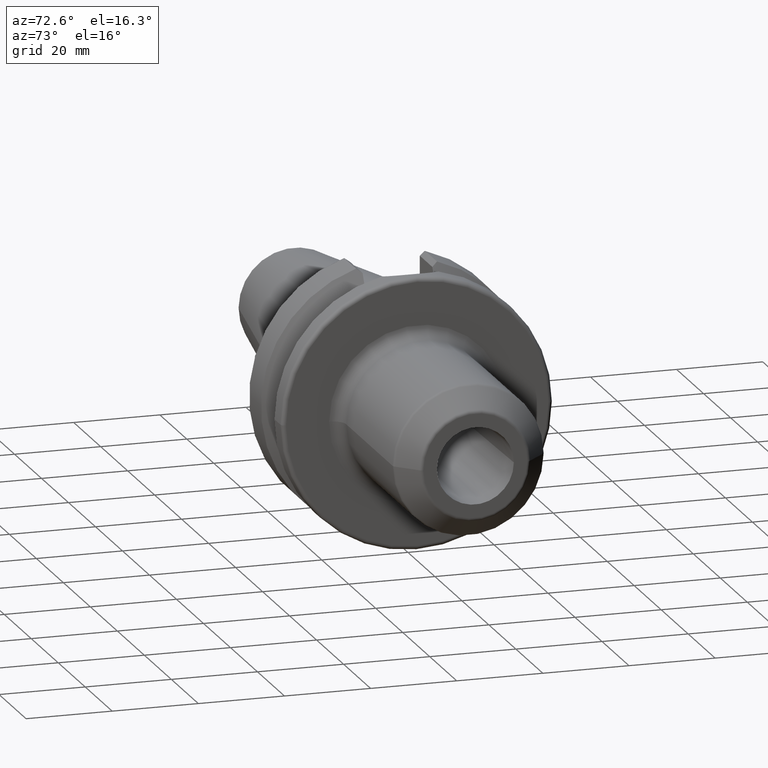
[diagram: clean part render]
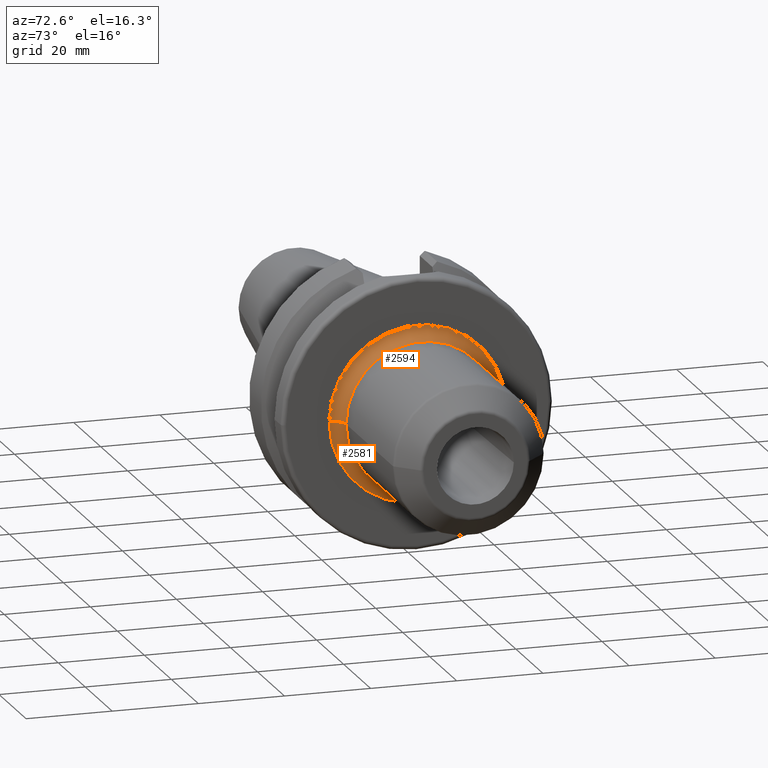
[diagram: same view with one multi-face feature highlighted, each face labeled with its STEP entity id]
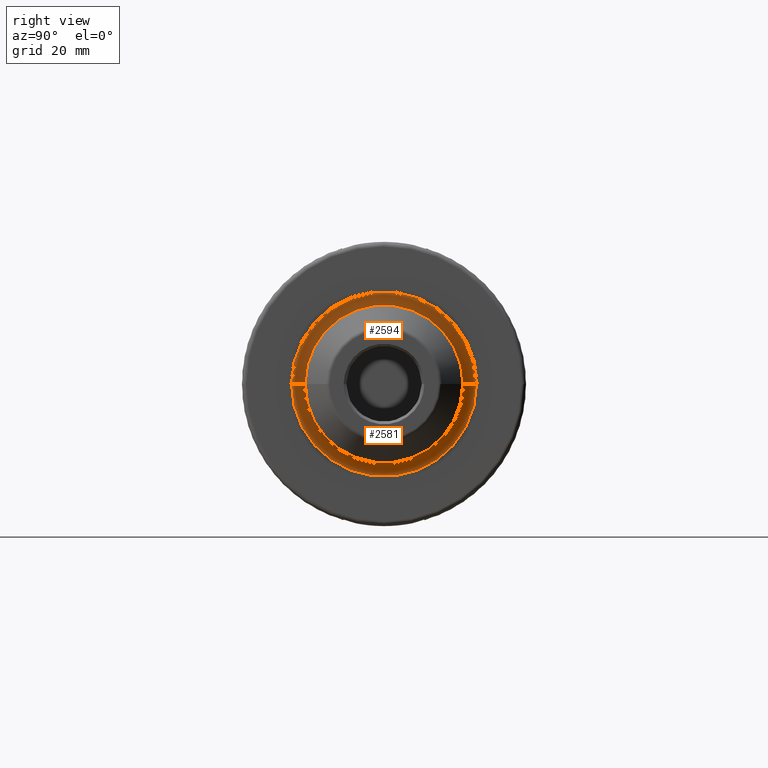
[diagram: same view with one multi-face feature highlighted, each face labeled with its STEP entity id]
A machine part, auxiliary view. The highlighted faces form ONE feature: a constant-radius fillet chain: 2 tangent blend faces with common blend radius 3 mm. The faces share edges in the B-rep.
A second angle (right view) of the same feature is appended — it is thin or edge-on in the first view.
Their STEP definitions:
[1] entity #2581 (Torus):
#836=CARTESIAN_POINT('',(2.7E1,0.E0,0.E0));
#837=DIRECTION('',(1.E0,0.E0,0.E0));
#838=DIRECTION('',(0.E0,-1.E0,0.E0));
#839=AXIS2_PLACEMENT_3D('',#836,#837,#838);
#846=CARTESIAN_POINT('',(3.E1,-2.05E1,7.607525720488E-13));
#847=DIRECTION('',(0.E0,-3.710920459810E-14,-1.E0));
#848=DIRECTION('',(-1.E0,4.855375361027E-14,0.E0));
#849=AXIS2_PLACEMENT_3D('',#846,#847,#848);
#851=CARTESIAN_POINT('',(3.E1,2.05E1,-7.637779297909E-13));
#852=DIRECTION('',(0.E0,3.725665609355E-14,1.E0));
#853=DIRECTION('',(-1.E0,-4.973799150321E-14,0.E0));
#854=AXIS2_PLACEMENT_3D('',#851,#852,#853);
#885=CARTESIAN_POINT('',(3.E1,0.E0,0.E0));
#886=DIRECTION('',(1.E0,0.E0,0.E0));
#887=DIRECTION('',(0.E0,-1.E0,0.E0));
#888=AXIS2_PLACEMENT_3D('',#885,#886,#887);
#1443=CARTESIAN_POINT('',(2.7E1,-2.05E1,0.E0));
#1444=CARTESIAN_POINT('',(2.7E1,2.05E1,0.E0));
#1445=VERTEX_POINT('',#1443);
#1446=VERTEX_POINT('',#1444);
#1447=CARTESIAN_POINT('',(3.E1,-1.75E1,0.E0));
#1448=CARTESIAN_POINT('',(3.E1,1.75E1,0.E0));
#1449=VERTEX_POINT('',#1447);
#1450=VERTEX_POINT('',#1448);
#2567=CARTESIAN_POINT('',(3.E1,0.E0,0.E0));
#2568=DIRECTION('',(1.E0,0.E0,0.E0));
#2569=DIRECTION('',(0.E0,-9.999613968234E-1,8.786629791456E-3));
#2570=AXIS2_PLACEMENT_3D('',#2567,#2568,#2569);
#2571=TOROIDAL_SURFACE('',#2570,2.05E1,3.E0);
#2572=ORIENTED_EDGE('',*,*,#2560,.F.);
#2574=ORIENTED_EDGE('',*,*,#2573,.T.);
#2576=ORIENTED_EDGE('',*,*,#2575,.T.);
#2578=ORIENTED_EDGE('',*,*,#2577,.F.);
#2579=EDGE_LOOP('',(#2572,#2574,#2576,#2578));
#2580=FACE_OUTER_BOUND('',#2579,.F.);
#2581=ADVANCED_FACE('',(#2580),#2571,.F.);
#840=CIRCLE('',#839,2.05E1);
#850=CIRCLE('',#849,3.E0);
#855=CIRCLE('',#854,3.E0);
#889=CIRCLE('',#888,1.75E1);
#2560=EDGE_CURVE('',#1445,#1446,#840,.T.);
#2573=EDGE_CURVE('',#1445,#1449,#850,.T.);
#2575=EDGE_CURVE('',#1449,#1450,#889,.T.);
#2577=EDGE_CURVE('',#1446,#1450,#855,.T.);
[2] entity #2594 (Torus):
#841=CARTESIAN_POINT('',(2.7E1,0.E0,0.E0));
#842=DIRECTION('',(1.E0,0.E0,0.E0));
#843=DIRECTION('',(0.E0,1.E0,0.E0));
#844=AXIS2_PLACEMENT_3D('',#841,#842,#843);
#846=CARTESIAN_POINT('',(3.E1,-2.05E1,7.607525720488E-13));
#847=DIRECTION('',(0.E0,-3.710920459810E-14,-1.E0));
#848=DIRECTION('',(-1.E0,4.855375361027E-14,0.E0));
#849=AXIS2_PLACEMENT_3D('',#846,#847,#848);
#851=CARTESIAN_POINT('',(3.E1,2.05E1,-7.637779297909E-13));
#852=DIRECTION('',(0.E0,3.725665609355E-14,1.E0));
#853=DIRECTION('',(-1.E0,-4.973799150321E-14,0.E0));
#854=AXIS2_PLACEMENT_3D('',#851,#852,#853);
#861=CARTESIAN_POINT('',(3.E1,0.E0,0.E0));
#862=DIRECTION('',(1.E0,0.E0,0.E0));
#863=DIRECTION('',(0.E0,1.E0,0.E0));
#864=AXIS2_PLACEMENT_3D('',#861,#862,#863);
#1443=CARTESIAN_POINT('',(2.7E1,-2.05E1,0.E0));
#1444=CARTESIAN_POINT('',(2.7E1,2.05E1,0.E0));
#1445=VERTEX_POINT('',#1443);
#1446=VERTEX_POINT('',#1444);
#1447=CARTESIAN_POINT('',(3.E1,-1.75E1,0.E0));
#1448=CARTESIAN_POINT('',(3.E1,1.75E1,0.E0));
#1449=VERTEX_POINT('',#1447);
#1450=VERTEX_POINT('',#1448);
#2582=CARTESIAN_POINT('',(3.E1,0.E0,0.E0));
#2583=DIRECTION('',(1.E0,0.E0,0.E0));
#2584=DIRECTION('',(0.E0,9.999613968234E-1,-8.786629791456E-3));
#2585=AXIS2_PLACEMENT_3D('',#2582,#2583,#2584);
#2586=TOROIDAL_SURFACE('',#2585,2.05E1,3.E0);
#2587=ORIENTED_EDGE('',*,*,#2562,.F.);
#2588=ORIENTED_EDGE('',*,*,#2577,.T.);
#2590=ORIENTED_EDGE('',*,*,#2589,.T.);
#2591=ORIENTED_EDGE('',*,*,#2573,.F.);
#2592=EDGE_LOOP('',(#2587,#2588,#2590,#2591));
#2593=FACE_OUTER_BOUND('',#2592,.F.);
#2594=ADVANCED_FACE('',(#2593),#2586,.F.);
#845=CIRCLE('',#844,2.05E1);
#850=CIRCLE('',#849,3.E0);
#855=CIRCLE('',#854,3.E0);
#865=CIRCLE('',#864,1.75E1);
#2562=EDGE_CURVE('',#1446,#1445,#845,.T.);
#2573=EDGE_CURVE('',#1445,#1449,#850,.T.);
#2577=EDGE_CURVE('',#1446,#1450,#855,.T.);
#2589=EDGE_CURVE('',#1450,#1449,#865,.T.);